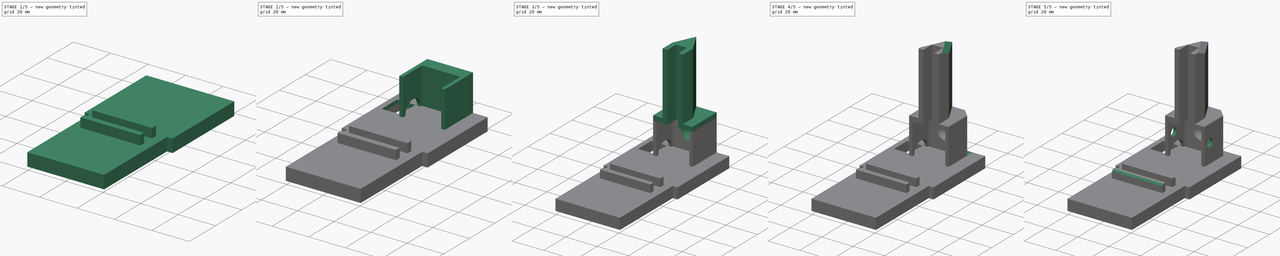
[diagram: build sequence overview — one tinted view per stage of 5, left to right]
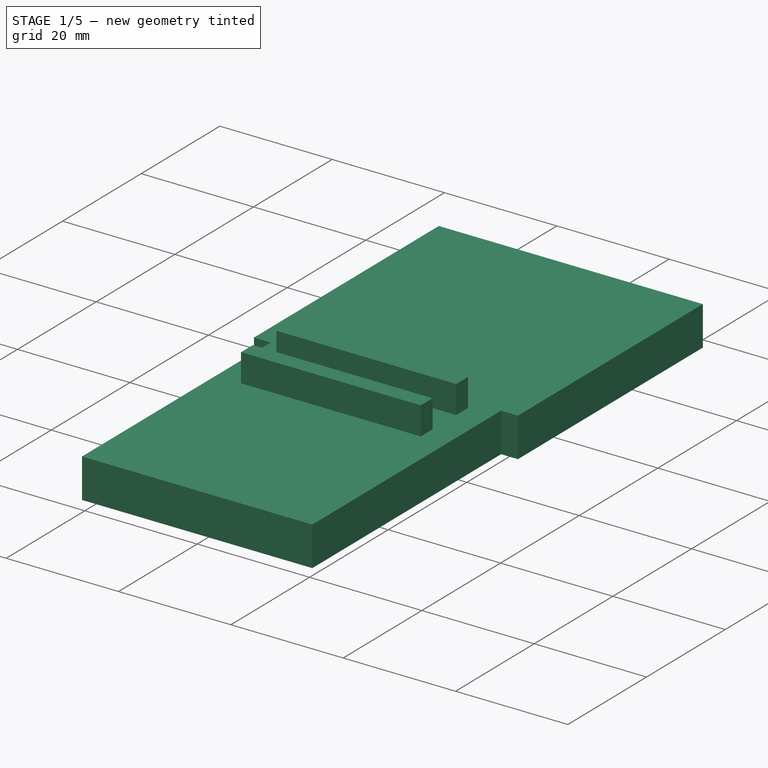
[diagram: stage 1 of 5 — iso view after this stage's code; geometry added in this stage tinted green]
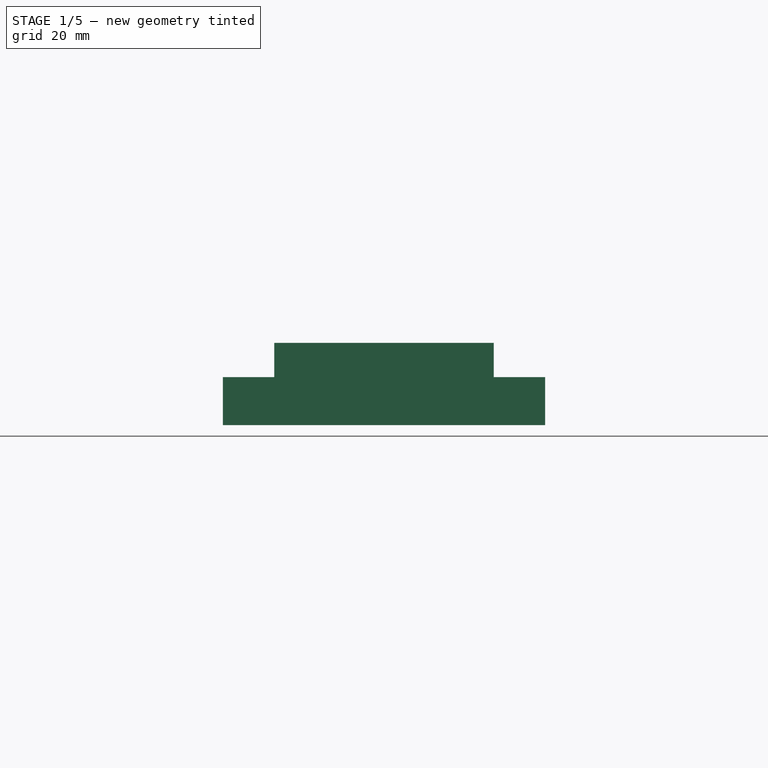
[diagram: stage 1 of 5 — front view after this stage's code; geometry added in this stage tinted green]
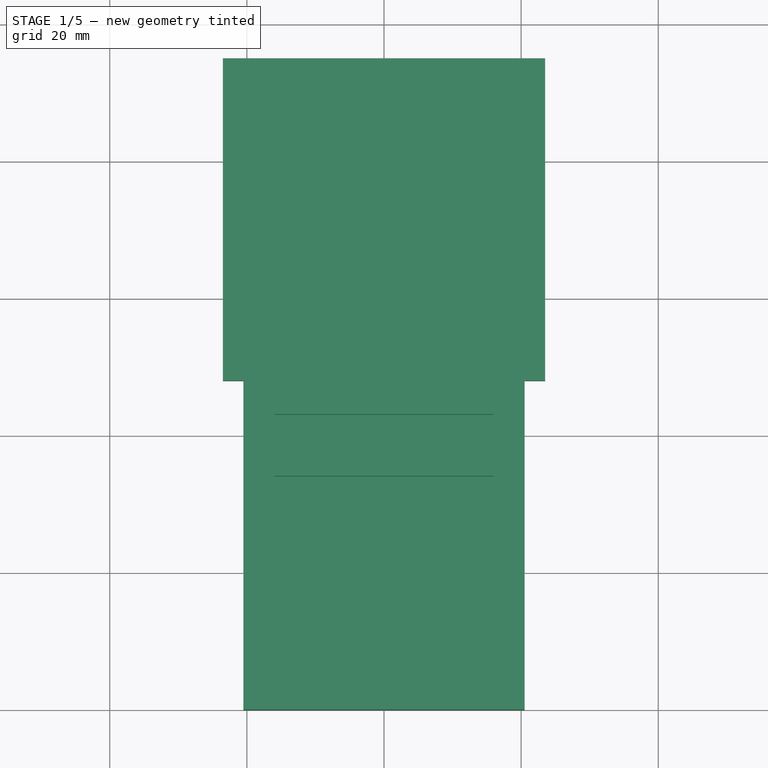
[diagram: stage 1 of 5 — top view after this stage's code; geometry added in this stage tinted green]
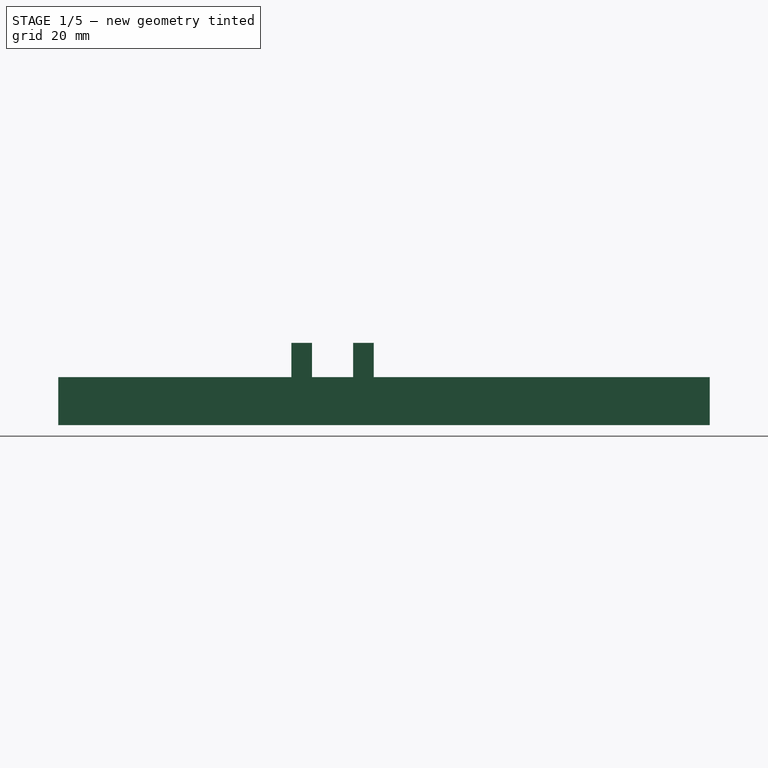
[diagram: stage 1 of 5 — right view after this stage's code; geometry added in this stage tinted green]
FCSTD DOCUMENT  (FreeCAD 0.19R)
Label: cover
License: All rights reserved
LicenseURL: http://en.wikipedia.org/wiki/All_rights_reserved
objects: Sketcher::SketchObject×10, PartDesign::Pad×5, PartDesign::Pocket×5, PartDesign::Chamfer×5, PartDesign::CoordinateSystem×1, PartDesign::Body×1
note: 42 computed .brp shape members not serialized (recipe doc carries the construction recipe); baked Part::Feature solids carry a one-line shape summary decoded from their .brp

FEATURE [Sketcher::SketchObject] Sketch
  FullyConstrained = true
  MapMode = 5
  Support = -> [XY_Plane]
  sketch-geometry (8):
    g0: LineSegment StartX=-23.5 StartY=95 StartZ=0 EndX=23.5 EndY=95 EndZ=0
    g1: LineSegment StartX=23.5 StartY=95 StartZ=0 EndX=23.5 EndY=48 EndZ=0
    g2: LineSegment StartX=23.5 StartY=48 StartZ=0 EndX=20.5 EndY=48 EndZ=0
    g3: LineSegment StartX=20.5 StartY=48 StartZ=0 EndX=20.5 EndY=0 EndZ=0
    g4: LineSegment StartX=20.5 StartY=0 StartZ=0 EndX=-20.5 EndY=0 EndZ=0
    g5: LineSegment StartX=-20.5 StartY=0 StartZ=0 EndX=-20.5 EndY=48 EndZ=0
    g6: LineSegment StartX=-20.5 StartY=48 StartZ=0 EndX=-23.5 EndY=48 EndZ=0
    g7: LineSegment StartX=-23.5 StartY=48 StartZ=0 EndX=-23.5 EndY=95 EndZ=0
  constraints (22):
    c: Coincident(g0,g1)
    c: Vertical(g1)
    c: Coincident(g1,g2)
    c: Horizontal(g2)
    c: Coincident(g2,g3)
    c: Vertical(g3)
    c: Coincident(g3,g4)
    c: Coincident(g4,g5)
    c: Vertical(g5)
    c: Coincident(g5,g6)
    c: Horizontal(g6)
    c: Coincident(g6,g7)
    c: Coincident(g7,g0)
    c: Vertical(g7)
    c: DistanceX(g0,g0) = 47
    c: Symmetric(g0,g0,g-2)
    c: DistanceY(g1,g1) = 47
    c: Equal(g7,g1)
    c: DistanceX(g4,g4) = 41
    c: Symmetric(g4,g3,g-2)
    c: PointOnObject(g3,g-1)
    c: DistanceY(g3,g3) = 48
FEATURE [PartDesign::Pad] Pad
  Direction = (1,1,1)
  Length = 7
  Length2 = 100
  Profile = -> Sketch
  Type = 0
FEATURE [Sketcher::SketchObject] Sketch001
  ExternalGeometry = -> [Pad]
  FullyConstrained = true
  MapMode = 5
  Placement = pos=(0,0,0) rot=(1,0,0;3.14159rad)
  Support = -> [Pad]
  sketch-geometry (8):
    g0: LineSegment StartX=-18.5 StartY=-2 StartZ=0 EndX=18.5 EndY=-2 EndZ=0
    g1: LineSegment StartX=18.5 StartY=-2 StartZ=0 EndX=18.5 EndY=-50 EndZ=0
    g2: LineSegment StartX=18.5 StartY=-50 StartZ=0 EndX=21.5 EndY=-50 EndZ=0
    g3: LineSegment StartX=21.5 StartY=-50 StartZ=0 EndX=21.5 EndY=-93 EndZ=0
    g4: LineSegment StartX=21.5 StartY=-93 StartZ=0 EndX=-21.5 EndY=-93 EndZ=0
    g5: LineSegment StartX=-21.5 StartY=-93 StartZ=0 EndX=-21.5 EndY=-50 EndZ=0
    g6: LineSegment StartX=-21.5 StartY=-50 StartZ=0 EndX=-18.5 EndY=-50 EndZ=0
    g7: LineSegment StartX=-18.5 StartY=-50 StartZ=0 EndX=-18.5 EndY=-2 EndZ=0
  constraints (24):
    c: Horizontal(g0)
    c: Coincident(g0,g1)
    c: Vertical(g1)
    c: Coincident(g1,g2)
    c: Horizontal(g2)
    c: Coincident(g2,g3)
    c: Vertical(g3)
    c: Coincident(g3,g4)
    c: Horizontal(g4)
    c: Coincident(g4,g5)
    c: Vertical(g5)
    c: Coincident(g5,g6)
    c: Horizontal(g6)
    c: Coincident(g6,g7)
    c: Coincident(g7,g0)
    c: Vertical(g7)
    c: DistanceY(g-6,g4) = 2
    c: DistanceX(g-6,g5) = 2
    c: DistanceY(g5,g-6) = 2
    c: DistanceX(g-3,g0) = 2
    c: DistanceX(g0,g-4) = 2
    c: DistanceY(g0,g-3) = 2
    c: DistanceY(g2,g-5) = 2
    c: DistanceX(g3,g-5) = 2
FEATURE [PartDesign::Pocket] Pocket
  BaseFeature = -> Pad
  Length = 5
  Length2 = 100
  Profile = -> Sketch001
  Type = 0
FEATURE [PartDesign::CoordinateSystem] LCS_1
  AttacherType = Attacher::AttachEngine3D
  AttachmentOffset = pos=(0,0,-21.5) rot=(0,0,1;0rad)
  MapMode = 7
  Placement = pos=(0,93,5) rot=(0.57735,0.57735,0.57735;2.0944rad)
  Support = -> [Pocket]
FEATURE [Sketcher::SketchObject] Sketch002
  ExternalGeometry = -> [Pocket]
  FullyConstrained = true
  MapMode = 5
  Placement = pos=(0,0,7) rot=(0,0,1;0rad)
  Support = -> [Pocket]
  sketch-geometry (8):
    g0: LineSegment StartX=-16 StartY=46 StartZ=0 EndX=16 EndY=46 EndZ=0
    g1: LineSegment StartX=16 StartY=46 StartZ=0 EndX=16 EndY=43 EndZ=0
    g2: LineSegment StartX=16 StartY=43 StartZ=0 EndX=-16 EndY=43 EndZ=0
    g3: LineSegment StartX=-16 StartY=43 StartZ=0 EndX=-16 EndY=46 EndZ=0
    g4: LineSegment StartX=-16 StartY=37 StartZ=0 EndX=16 EndY=37 EndZ=0
    g5: LineSegment StartX=16 StartY=37 StartZ=0 EndX=16 EndY=34 EndZ=0
    g6: LineSegment StartX=16 StartY=34 StartZ=0 EndX=-16 EndY=34 EndZ=0
    g7: LineSegment StartX=-16 StartY=34 StartZ=0 EndX=-16 EndY=37 EndZ=0
  constraints (22):
    c: Coincident(g0,g1)
    c: Coincident(g1,g2)
    c: Coincident(g2,g3)
    c: Coincident(g3,g0)
    c: Horizontal(g0)
    c: Vertical(g1)
    c: Vertical(g3)
    c: Coincident(g4,g5)
    c: Coincident(g5,g6)
    c: Coincident(g6,g7)
    c: Coincident(g7,g4)
    c: Horizontal(g6)
    c: Vertical(g5)
    c: Vertical(g7)
    c: Equal(g5,g1)
    c: Symmetric(g1,g2,g-2)
    c: DistanceY(g1,g-3) = 5
    c: Equal(g4,g2)
    c: Symmetric(g4,g4,g-2)
    c: DistanceY(g4,g1) = 6
    c: DistanceY(g5,g4) = 3
    c: DistanceX(g4,g4) = 32
FEATURE [PartDesign::Pad] Pad001
  BaseFeature = -> Pocket
  Direction = (1,1,1)
  Length = 5
  Length2 = 100
  Profile = -> Sketch002
  Type = 0
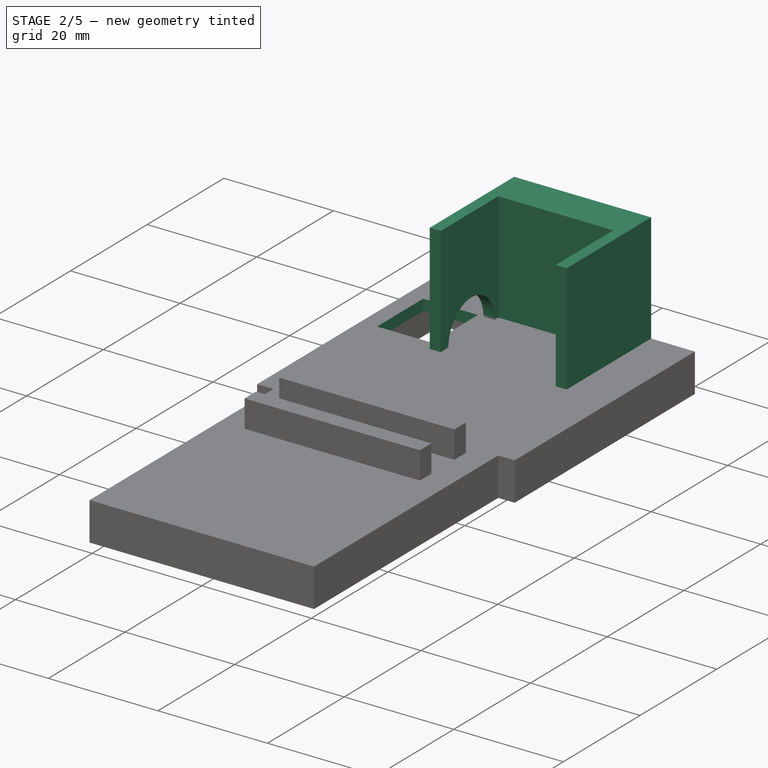
[diagram: stage 2 of 5 — iso view after this stage's code; geometry added in this stage tinted green]
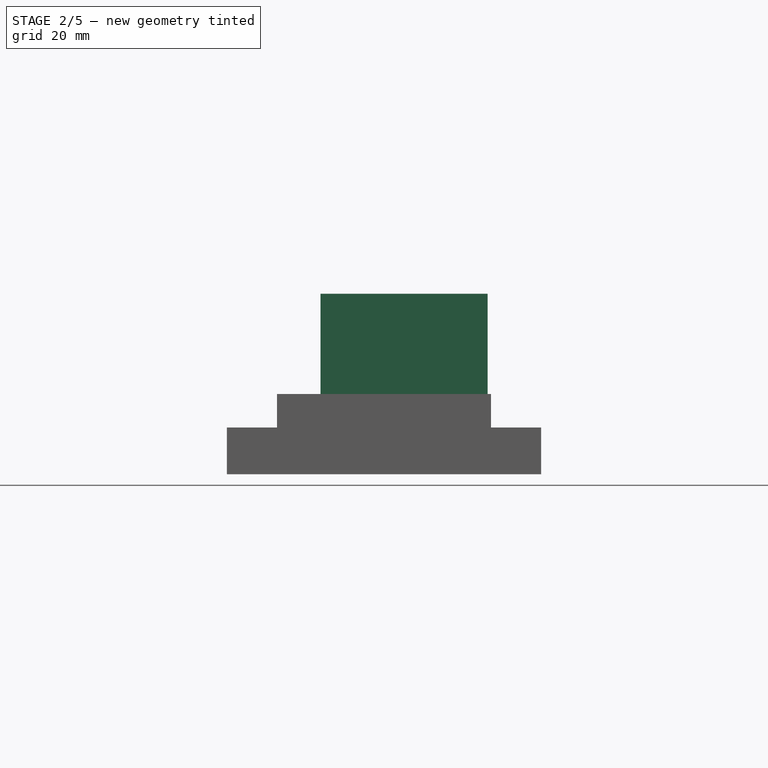
[diagram: stage 2 of 5 — front view after this stage's code; geometry added in this stage tinted green]
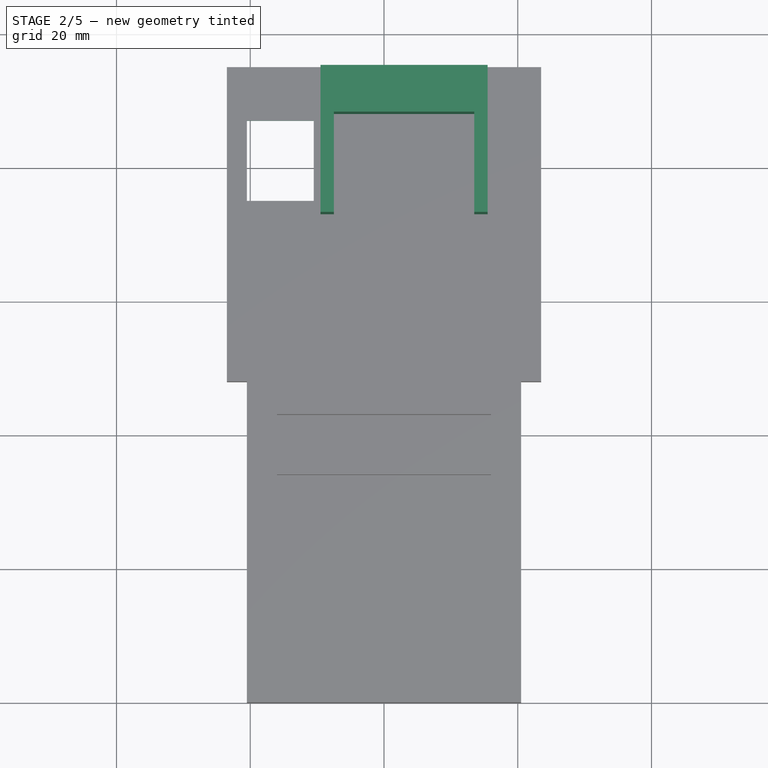
[diagram: stage 2 of 5 — top view after this stage's code; geometry added in this stage tinted green]
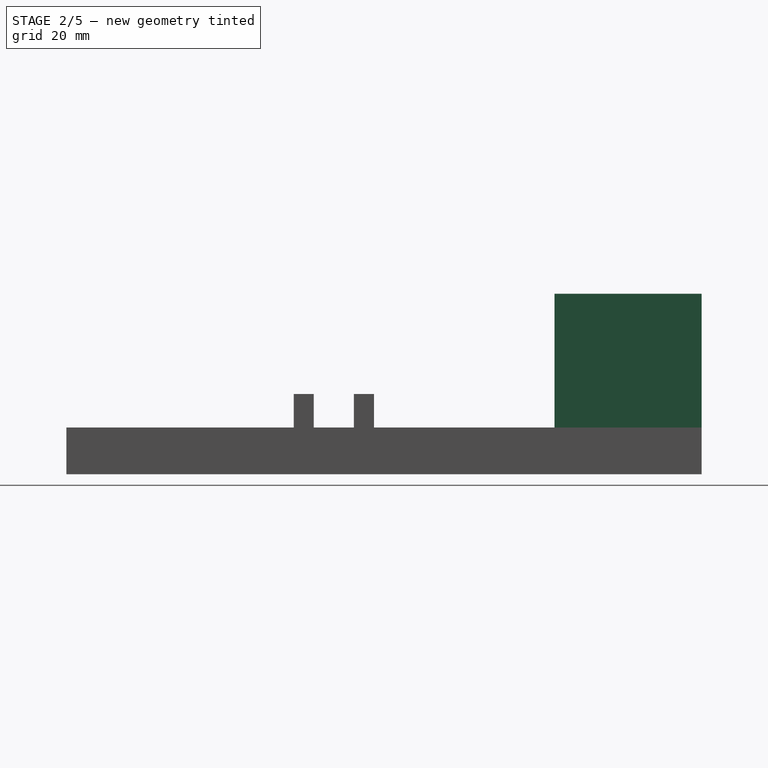
[diagram: stage 2 of 5 — right view after this stage's code; geometry added in this stage tinted green]
FEATURE [Sketcher::SketchObject] Sketch003
  ExternalGeometry = -> [Pad001]
  FullyConstrained = true
  MapMode = 5
  Placement = pos=(0,0,7) rot=(0,0,1;0rad)
  Support = -> [Pad001]
  sketch-geometry (4):
    g0: LineSegment StartX=-20.5 StartY=87 StartZ=0 EndX=-10.5 EndY=87 EndZ=0
    g1: LineSegment StartX=-10.5 StartY=87 StartZ=0 EndX=-10.5 EndY=75 EndZ=0
    g2: LineSegment StartX=-10.5 StartY=75 StartZ=0 EndX=-20.5 EndY=75 EndZ=0
    g3: LineSegment StartX=-20.5 StartY=75 StartZ=0 EndX=-20.5 EndY=87 EndZ=0
  constraints (12):
    c: Coincident(g0,g1)
    c: Coincident(g1,g2)
    c: Coincident(g2,g3)
    c: Coincident(g3,g0)
    c: Horizontal(g0)
    c: Horizontal(g2)
    c: Vertical(g1)
    c: Vertical(g3)
    c: DistanceX(g0,g0) = 10
    c: DistanceY(g1,g1) = 12
    c: DistanceY(g0,g-3) = 8
    c: DistanceX(g-3,g0) = 3
FEATURE [PartDesign::Pocket] Pocket001
  BaseFeature = -> Pad001
  Length = 2
  Length2 = 100
  Profile = -> Sketch003
  Type = 0
FEATURE [Sketcher::SketchObject] Sketch004
  ExternalGeometry = -> [Pocket001]
  FullyConstrained = true
  MapMode = 5
  Placement = pos=(0,0,7) rot=(0,0,1;0rad)
  Support = -> [Pocket001]
  sketch-geometry (8):
    g0: LineSegment StartX=-9.5 StartY=95 StartZ=0 EndX=15.5 EndY=95 EndZ=0
    g1: LineSegment StartX=-9.5 StartY=95 StartZ=0 EndX=-9.5 EndY=73 EndZ=0
    g2: LineSegment StartX=15.5 StartY=73 StartZ=0 EndX=15.5 EndY=95 EndZ=0
    g3: LineSegment StartX=-9.5 StartY=73 StartZ=0 EndX=-7.5 EndY=73 EndZ=0
    g4: LineSegment StartX=15.5 StartY=73 StartZ=0 EndX=13.5 EndY=73 EndZ=0
    g5: LineSegment StartX=-7.5 StartY=73 StartZ=0 EndX=-7.5 EndY=88 EndZ=0
    g6: LineSegment StartX=-7.5 StartY=88 StartZ=0 EndX=13.5 EndY=88 EndZ=0
    g7: LineSegment StartX=13.5 StartY=88 StartZ=0 EndX=13.5 EndY=73 EndZ=0
  constraints (24):
    c: PointOnObject(g0,g-3)
    c: PointOnObject(g0,g-3)
    c: DistanceX(g0,g0) = 25
    c: DistanceX(g-3,g0) = 14
    c: Coincident(g0,g1)
    c: Vertical(g1)
    c: Coincident(g2,g0)
    c: Vertical(g2)
    c: Coincident(g3,g1)
    c: Horizontal(g3)
    c: Coincident(g4,g2)
    c: Horizontal(g4)
    c: Equal(g4,g3)
    c: DistanceX(g4,g4) = 2
    c: Equal(g2,g1)
    c: DistanceY(g2,g2) = 22
    c: Coincident(g3,g5)
    c: Vertical(g5)
    c: Coincident(g5,g6)
    c: Horizontal(g6)
    c: Coincident(g6,g7)
    c: Coincident(g7,g4)
    c: Vertical(g7)
    c: DistanceY(g6,g0) = 7
FEATURE [PartDesign::Pad] Pad002
  BaseFeature = -> Pocket001
  Direction = (1,1,1)
  Length = 20
  Length2 = 100
  Profile = -> Sketch004
  Type = 0
FEATURE [Sketcher::SketchObject] Sketch005
  ExternalGeometry = -> [Pad002]
  FullyConstrained = true
  MapMode = 5
  Placement = pos=(-7.5,0,0) rot=(0.57735,0.57735,0.57735;2.0944rad)
  Support = -> [Pad002]
  sketch-geometry (2):
    g0: ArcOfCircle CenterX=81 CenterY=7 CenterZ=0 NormalX=0 NormalY=0 NormalZ=1 AngleXU=0 Radius=6 StartAngle=1.42e-14 EndAngle=3.14159
    g1: LineSegment StartX=75 StartY=7 StartZ=0 EndX=87 EndY=7 EndZ=0
  constraints (5):
    c: PointOnObject(g0,g-3)
    c: Coincident(g0,g-4)
    c: Coincident(g0,g-5)
    c: Coincident(g1,g0)
    c: Coincident(g1,g0)
FEATURE [PartDesign::Pocket] Pocket002
  BaseFeature = -> Pad002
  Length = 5
  Length2 = 100
  Profile = -> Sketch005
  Type = 0
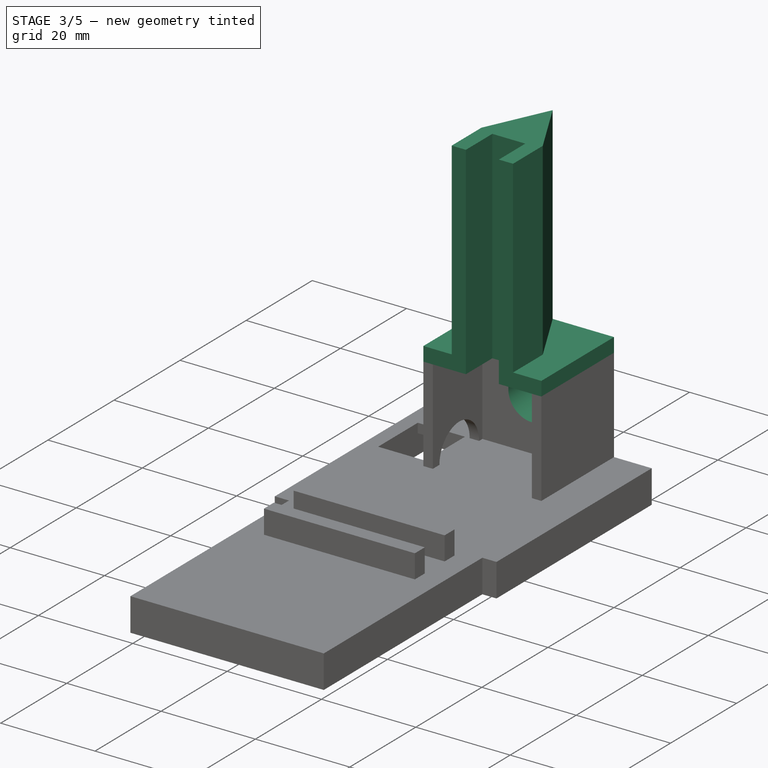
[diagram: stage 3 of 5 — iso view after this stage's code; geometry added in this stage tinted green]
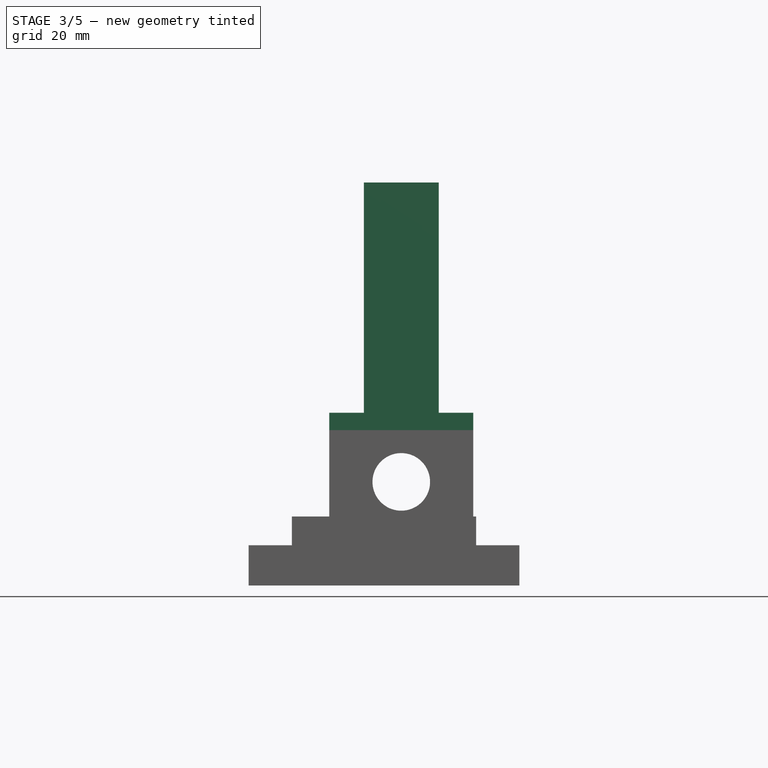
[diagram: stage 3 of 5 — front view after this stage's code; geometry added in this stage tinted green]
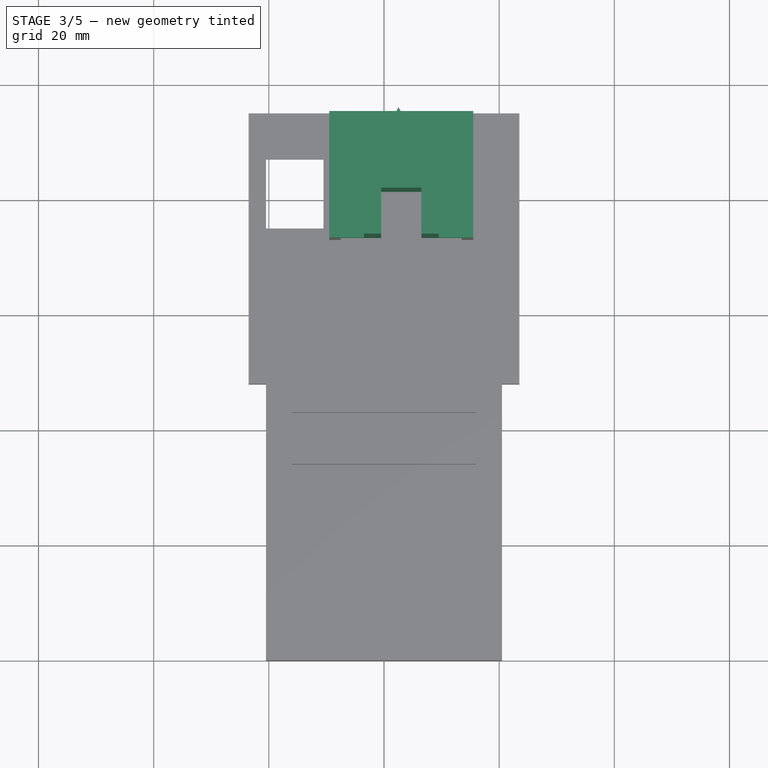
[diagram: stage 3 of 5 — top view after this stage's code; geometry added in this stage tinted green]
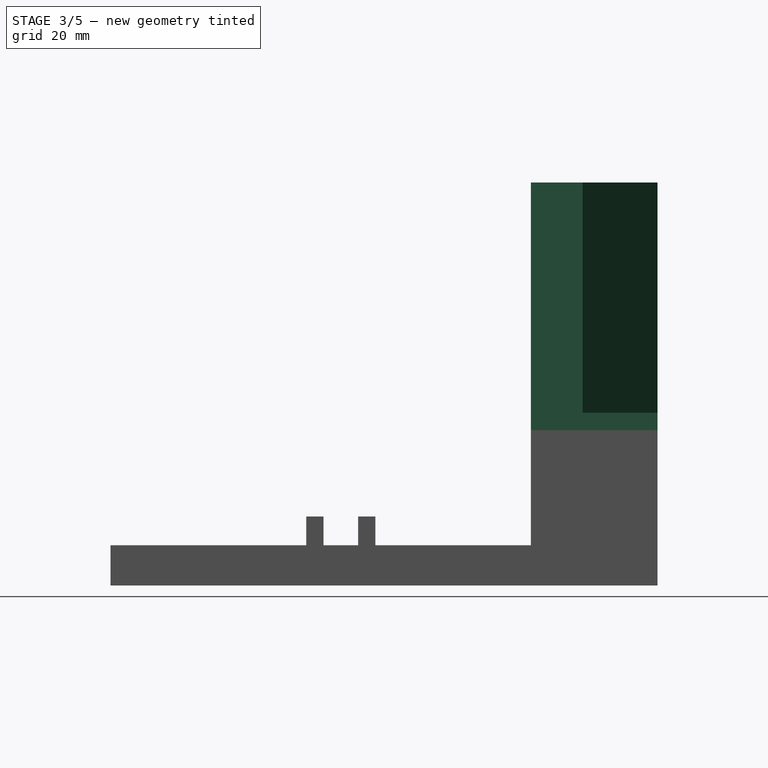
[diagram: stage 3 of 5 — right view after this stage's code; geometry added in this stage tinted green]
FEATURE [Sketcher::SketchObject] Sketch006
  ExternalGeometry = -> [Pad002]
  FullyConstrained = true
  MapMode = 5
  Placement = pos=(-5.42e-14,95,0) rot=(0,0.707107,0.707107;3.14159rad)
  Support = -> [Pad002]
  sketch-geometry (1):
    g0: Circle CenterX=-3 CenterY=18 CenterZ=0 NormalX=0 NormalY=0 NormalZ=1 AngleXU=0 Radius=5
  constraints (3):
    c: Diameter(g0) = 10
    c: DistanceY(g0,g-3) = 9
    c: DistanceX(g-3,g0) = 12.5
FEATURE [PartDesign::Pocket] Pocket003
  BaseFeature = -> Pocket002
  Length = 7
  Length2 = 100
  Profile = -> Sketch006
  Type = 0
FEATURE [Sketcher::SketchObject] Sketch007
  ExternalGeometry = -> [Pocket003]
  FullyConstrained = true
  MapMode = 5
  Placement = pos=(0,0,27) rot=(0,0,1;0rad)
  Support = -> [Pocket003]
  sketch-geometry (8):
    g0: LineSegment StartX=-9.5 StartY=73 StartZ=0 EndX=-0.5 EndY=73 EndZ=0
    g1: LineSegment StartX=-0.5 StartY=73 StartZ=0 EndX=-0.5 EndY=81 EndZ=0
    g2: LineSegment StartX=-0.5 StartY=81 StartZ=0 EndX=6.5 EndY=81 EndZ=0
    g3: LineSegment StartX=6.5 StartY=81 StartZ=0 EndX=6.5 EndY=73 EndZ=0
    g4: LineSegment StartX=6.5 StartY=73 StartZ=0 EndX=15.5 EndY=73 EndZ=0
    g5: LineSegment StartX=15.5 StartY=73 StartZ=0 EndX=15.5 EndY=95 EndZ=0
    g6: LineSegment StartX=15.5 StartY=95 StartZ=0 EndX=-9.5 EndY=95 EndZ=0
    g7: LineSegment StartX=-9.5 StartY=95 StartZ=0 EndX=-9.5 EndY=73 EndZ=0
  constraints (20):
    c: Coincident(g-3,g0)
    c: Horizontal(g0)
    c: Coincident(g0,g1)
    c: Vertical(g1)
    c: Coincident(g1,g2)
    c: Horizontal(g2)
    c: Coincident(g2,g3)
    c: Vertical(g3)
    c: Coincident(g3,g4)
    c: Coincident(g4,g-5)
    c: Coincident(g4,g5)
    c: Coincident(g5,g-5)
    c: Coincident(g5,g6)
    c: Coincident(g6,g-4)
    c: Coincident(g6,g7)
    c: Coincident(g7,g0)
    c: Horizontal(g4)
    c: Equal(g0,g4)
    c: DistanceY(g2,g-6) = 7
    c: DistanceX(g2,g2) = 7
FEATURE [PartDesign::Pad] Pad003
  BaseFeature = -> Pocket003
  Direction = (1,1,1)
  Length = 3
  Length2 = 100
  Profile = -> Sketch007
  Type = 0
FEATURE [Sketcher::SketchObject] Sketch008
  ExternalGeometry = -> [Pad003]
  FullyConstrained = true
  MapMode = 5
  Placement = pos=(0,0,30) rot=(0,0,1;0rad)
  Support = -> [Pad003]
  sketch-geometry (9):
    g0: LineSegment StartX=-0.5 StartY=73 StartZ=0 EndX=-0.5 EndY=81 EndZ=0
    g1: LineSegment StartX=-0.5 StartY=81 StartZ=0 EndX=6.5 EndY=81 EndZ=0
    g2: LineSegment StartX=6.5 StartY=81 StartZ=0 EndX=6.5 EndY=73 EndZ=0
    g3: LineSegment StartX=6.5 StartY=73 StartZ=0 EndX=9.5 EndY=73 EndZ=0
    g4: LineSegment StartX=9.5 StartY=73 StartZ=0 EndX=9.5 EndY=82 EndZ=0
    g5: LineSegment StartX=9.5 StartY=82 StartZ=0 EndX=2.5 EndY=95 EndZ=0
    g6: LineSegment StartX=2.5 StartY=95 StartZ=0 EndX=-3.5 EndY=82 EndZ=0
    g7: LineSegment StartX=-3.5 StartY=82 StartZ=0 EndX=-3.5 EndY=73 EndZ=0
    g8: LineSegment StartX=-3.5 StartY=73 StartZ=0 EndX=-0.5 EndY=73 EndZ=0
  constraints (23):
    c: Coincident(g-6,g0)
    c: Coincident(g0,g-6)
    c: Coincident(g0,g1)
    c: Coincident(g1,g-5)
    c: Coincident(g1,g2)
    c: Coincident(g2,g-5)
    c: Coincident(g2,g3)
    c: Horizontal(g3)
    c: Coincident(g3,g4)
    c: Vertical(g4)
    c: Coincident(g4,g5)
    c: PointOnObject(g5,g-3)
    c: Coincident(g5,g6)
    c: Coincident(g6,g7)
    c: Vertical(g7)
    c: Coincident(g7,g8)
    c: Coincident(g8,g0)
    c: Horizontal(g8)
    c: Equal(g7,g4)
    c: Equal(g8,g3)
    c: DistanceX(g3,g3) = 3
    c: DistanceY(g7,g7) = 9
    c: DistanceX(g5,g4) = 7
FEATURE [PartDesign::Pad] Pad004
  BaseFeature = -> Pad003
  Direction = (1,1,1)
  Length = 40
  Length2 = 100
  Profile = -> Sketch008
  Type = 0
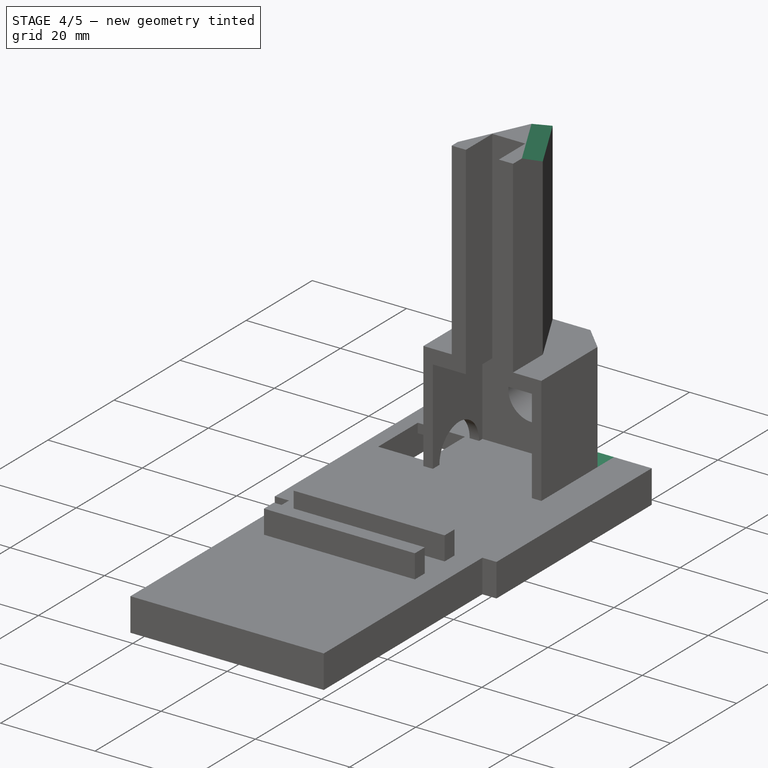
[diagram: stage 4 of 5 — iso view after this stage's code; geometry added in this stage tinted green]
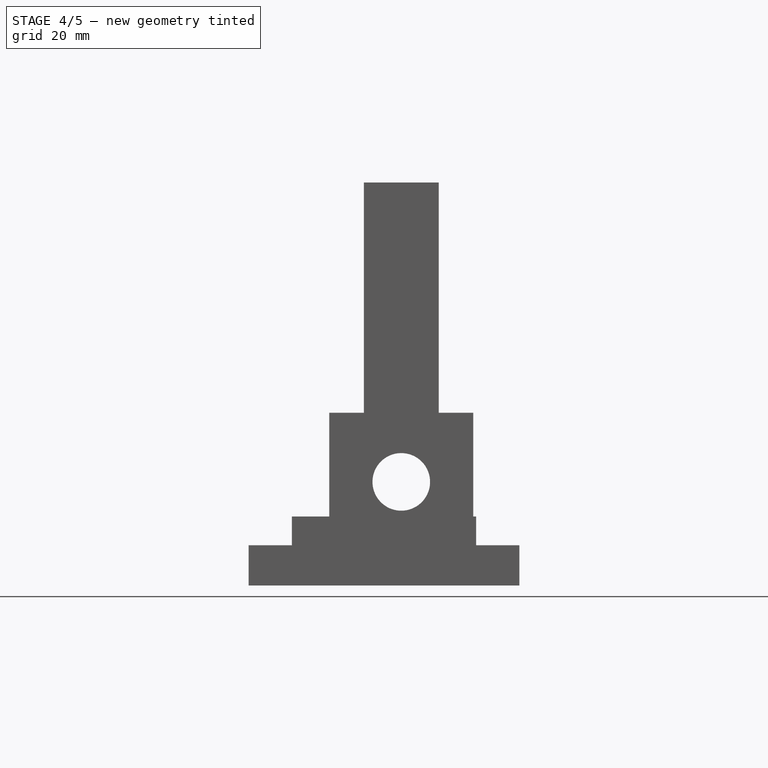
[diagram: stage 4 of 5 — front view after this stage's code; geometry added in this stage tinted green]
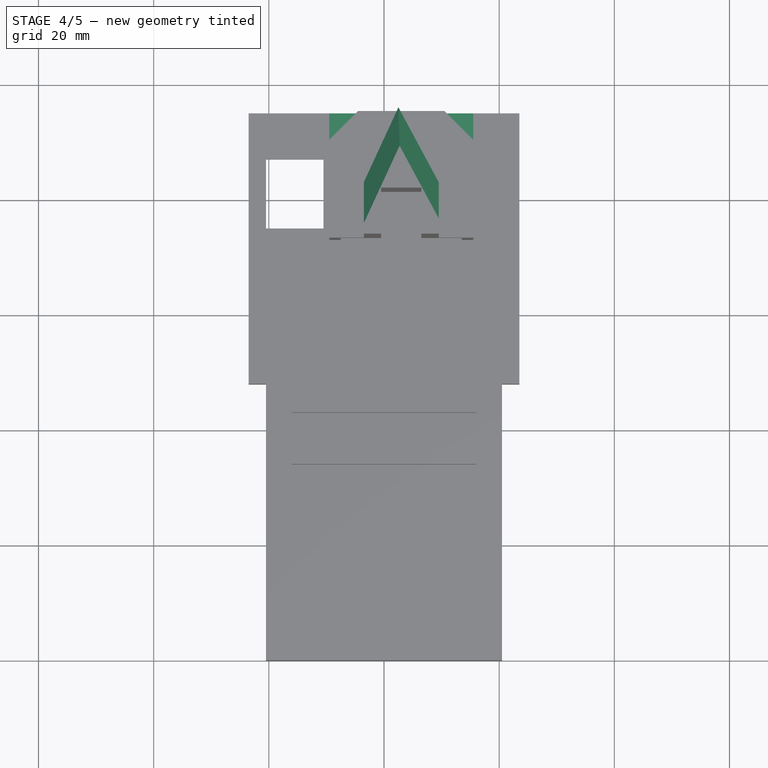
[diagram: stage 4 of 5 — top view after this stage's code; geometry added in this stage tinted green]
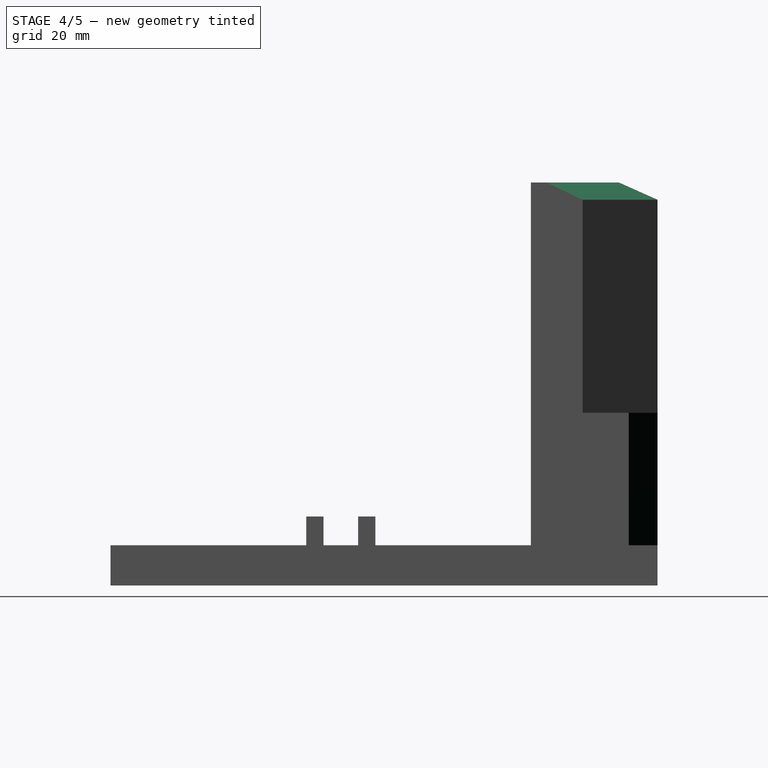
[diagram: stage 4 of 5 — right view after this stage's code; geometry added in this stage tinted green]
FEATURE [PartDesign::Chamfer] Chamfer
  Angle = 45
  Base = -> Pad004 [Edge58]
  BaseFeature = -> Pad004
  ChamferType = 0
  FlipDirection = false
  Size = 5
  Size2 = 1
  SupportTransform = false
FEATURE [PartDesign::Chamfer] Chamfer001
  Angle = 45
  Base = -> Chamfer [Edge46]
  BaseFeature = -> Chamfer
  ChamferType = 0
  FlipDirection = false
  Size = 5
  Size2 = 1
  SupportTransform = false
FEATURE [PartDesign::Chamfer] Chamfer002
  Angle = 45
  Base = -> Chamfer001 [Edge176,Edge174]
  BaseFeature = -> Chamfer001
  ChamferType = 0
  FlipDirection = false
  Size = 3
  Size2 = 1
  SupportTransform = false
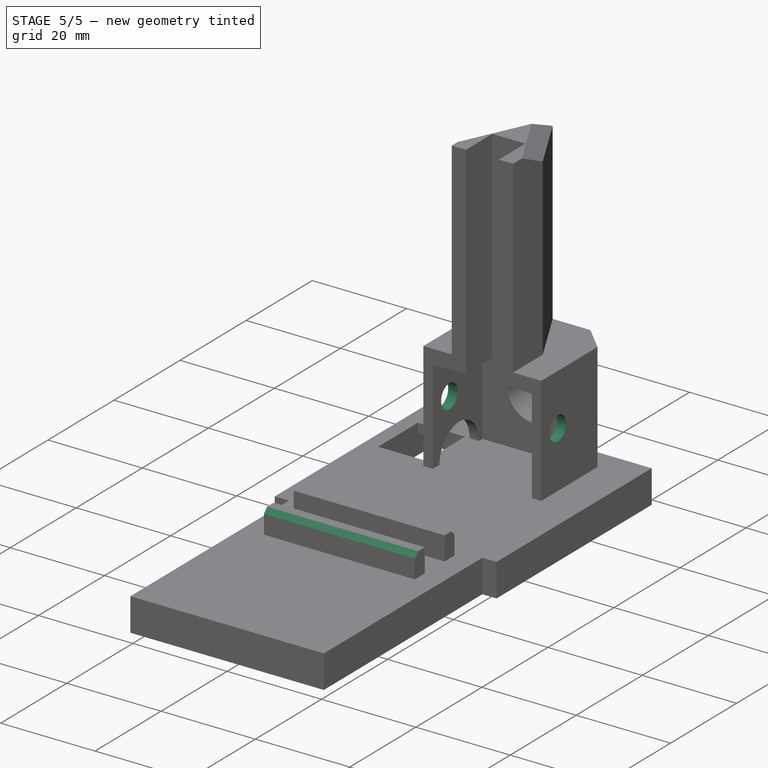
[diagram: stage 5 of 5 — iso view after this stage's code; geometry added in this stage tinted green]
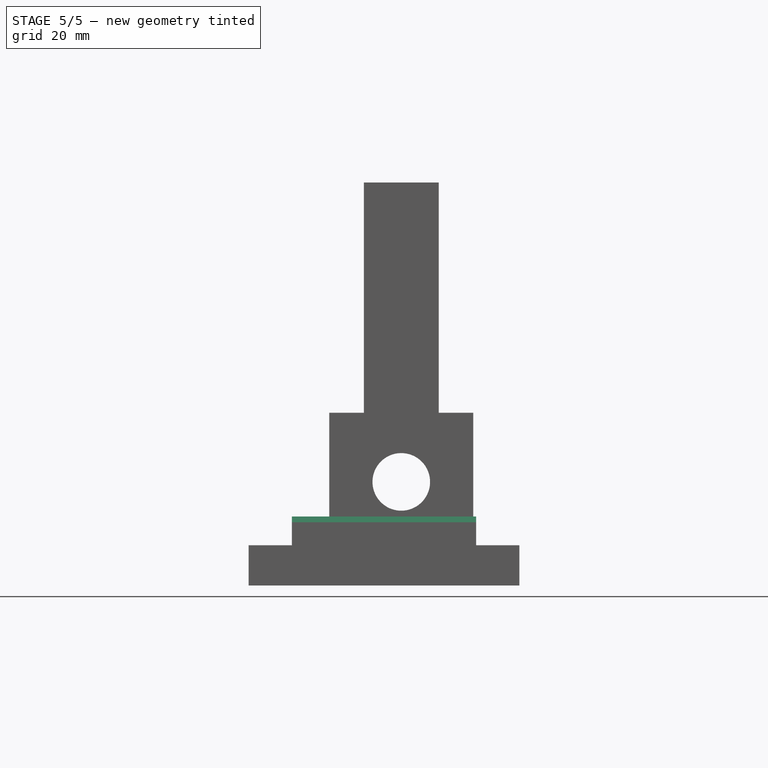
[diagram: stage 5 of 5 — front view after this stage's code; geometry added in this stage tinted green]
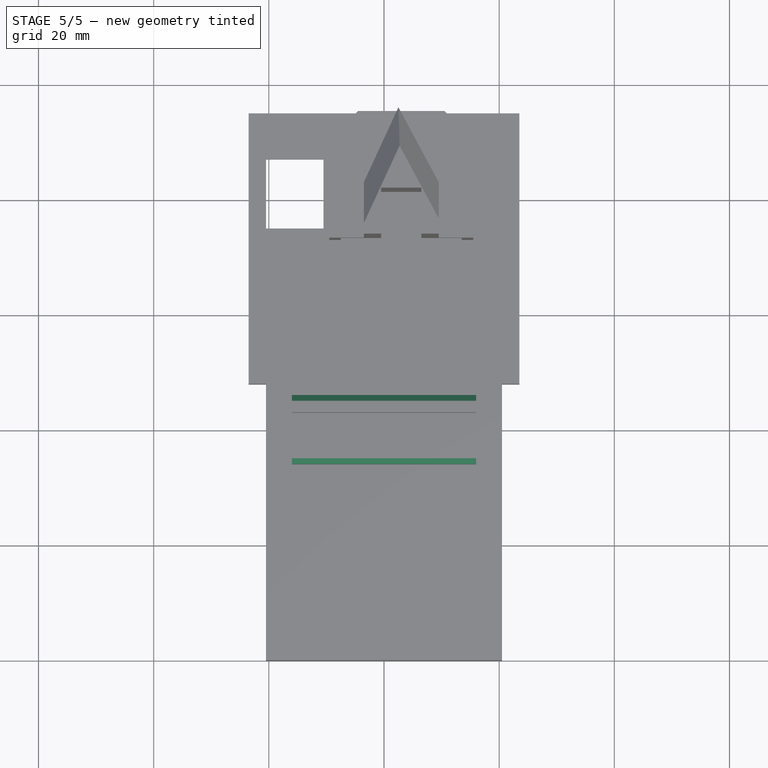
[diagram: stage 5 of 5 — top view after this stage's code; geometry added in this stage tinted green]
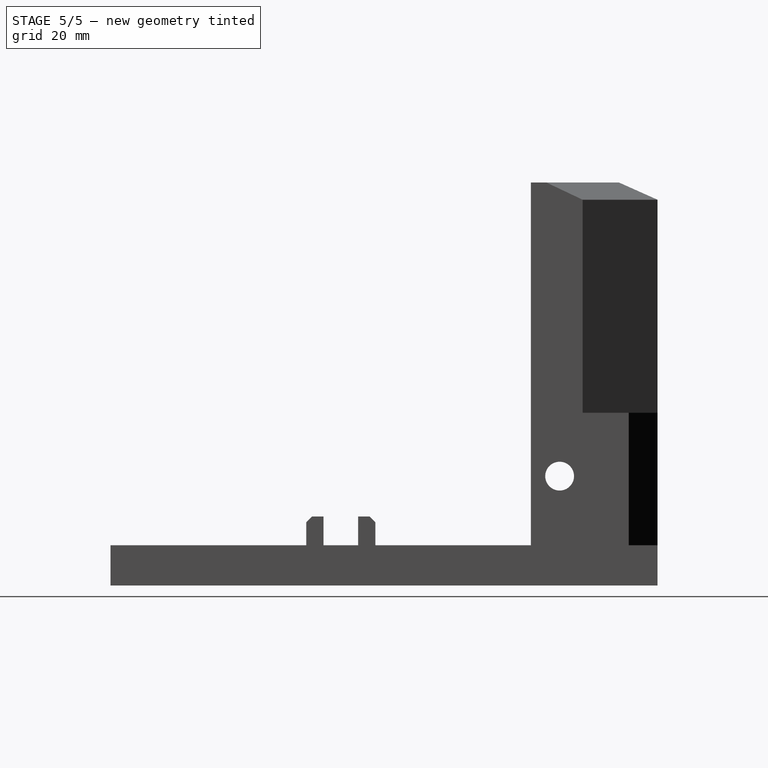
[diagram: stage 5 of 5 — right view after this stage's code; geometry added in this stage tinted green]
FEATURE [PartDesign::Chamfer] Chamfer003
  Angle = 45
  Base = -> Chamfer002 [Edge156]
  BaseFeature = -> Chamfer002
  ChamferType = 0
  FlipDirection = false
  Size = 1
  Size2 = 1
  SupportTransform = false
FEATURE [PartDesign::Chamfer] Chamfer004
  Angle = 45
  Base = -> Chamfer003 [Edge106]
  BaseFeature = -> Chamfer003
  ChamferType = 0
  FlipDirection = false
  Size = 1
  Size2 = 1
  SupportTransform = false
FEATURE [Sketcher::SketchObject] Sketch009
  ExternalGeometry = -> [Chamfer004]
  FullyConstrained = true
  MapMode = 5
  Placement = pos=(15.5,0,0) rot=(0.57735,0.57735,0.57735;2.0944rad)
  Support = -> [Chamfer004]
  sketch-geometry (1):
    g0: Circle CenterX=78 CenterY=19 CenterZ=0 NormalX=0 NormalY=0 NormalZ=1 AngleXU=0 Radius=2.5
  constraints (3):
    c: Diameter(g0) = 5
    c: DistanceX(g-3,g0) = 5
    c: DistanceY(g0,g-3) = 8
FEATURE [PartDesign::Pocket] Pocket004
  BaseFeature = -> Chamfer004
  Length = 5
  Length2 = 100
  Profile = -> Sketch009
  Type = 1
FEATURE [PartDesign::Body] Body
  Group = -> [Sketch,Pad,Sketch001,Pocket,LCS_1,Sketch002,Pad001,Sketch003,Pocket001,Sketch004,Pad002,Sketch005,Pocket002,Sketch006,Pocket003,Sketch007,Pad003,Sketch008,Pad004,Chamfer,Chamfer001,Chamfer002,Chamfer003,Chamfer004,Sketch009,Pocket004]
  Origin = -> Origin
  Tip = -> Pocket004
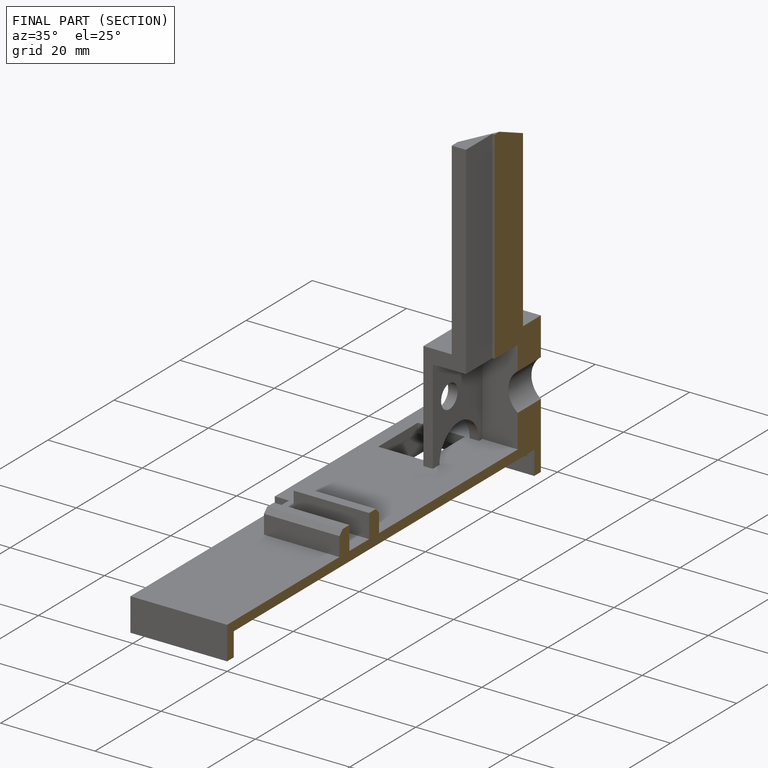
[diagram: finished part — half-section view (interior)]
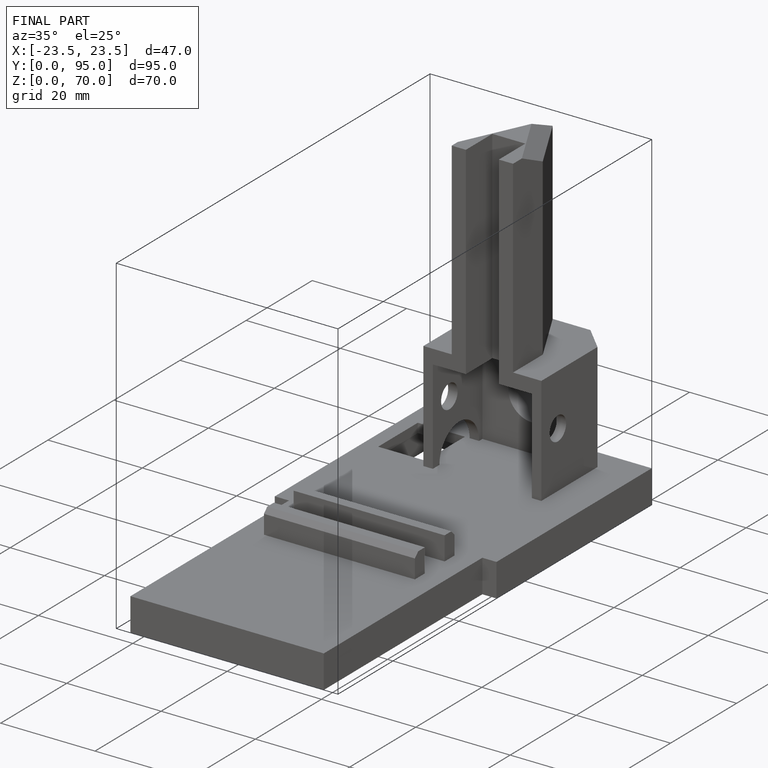
[diagram: finished part — iso view with bounding-box wireframe]
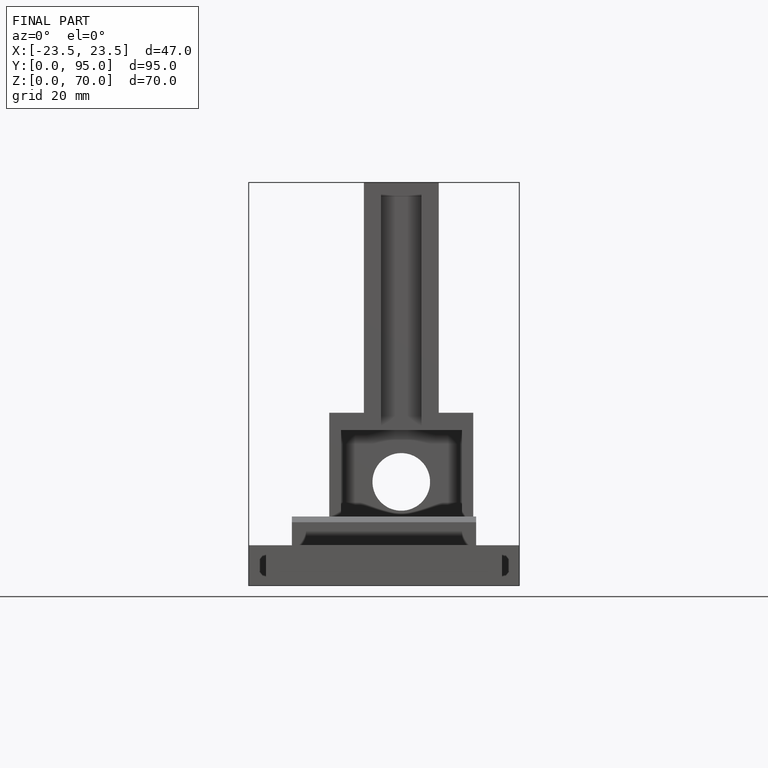
[diagram: finished part — front view with bounding-box wireframe]
